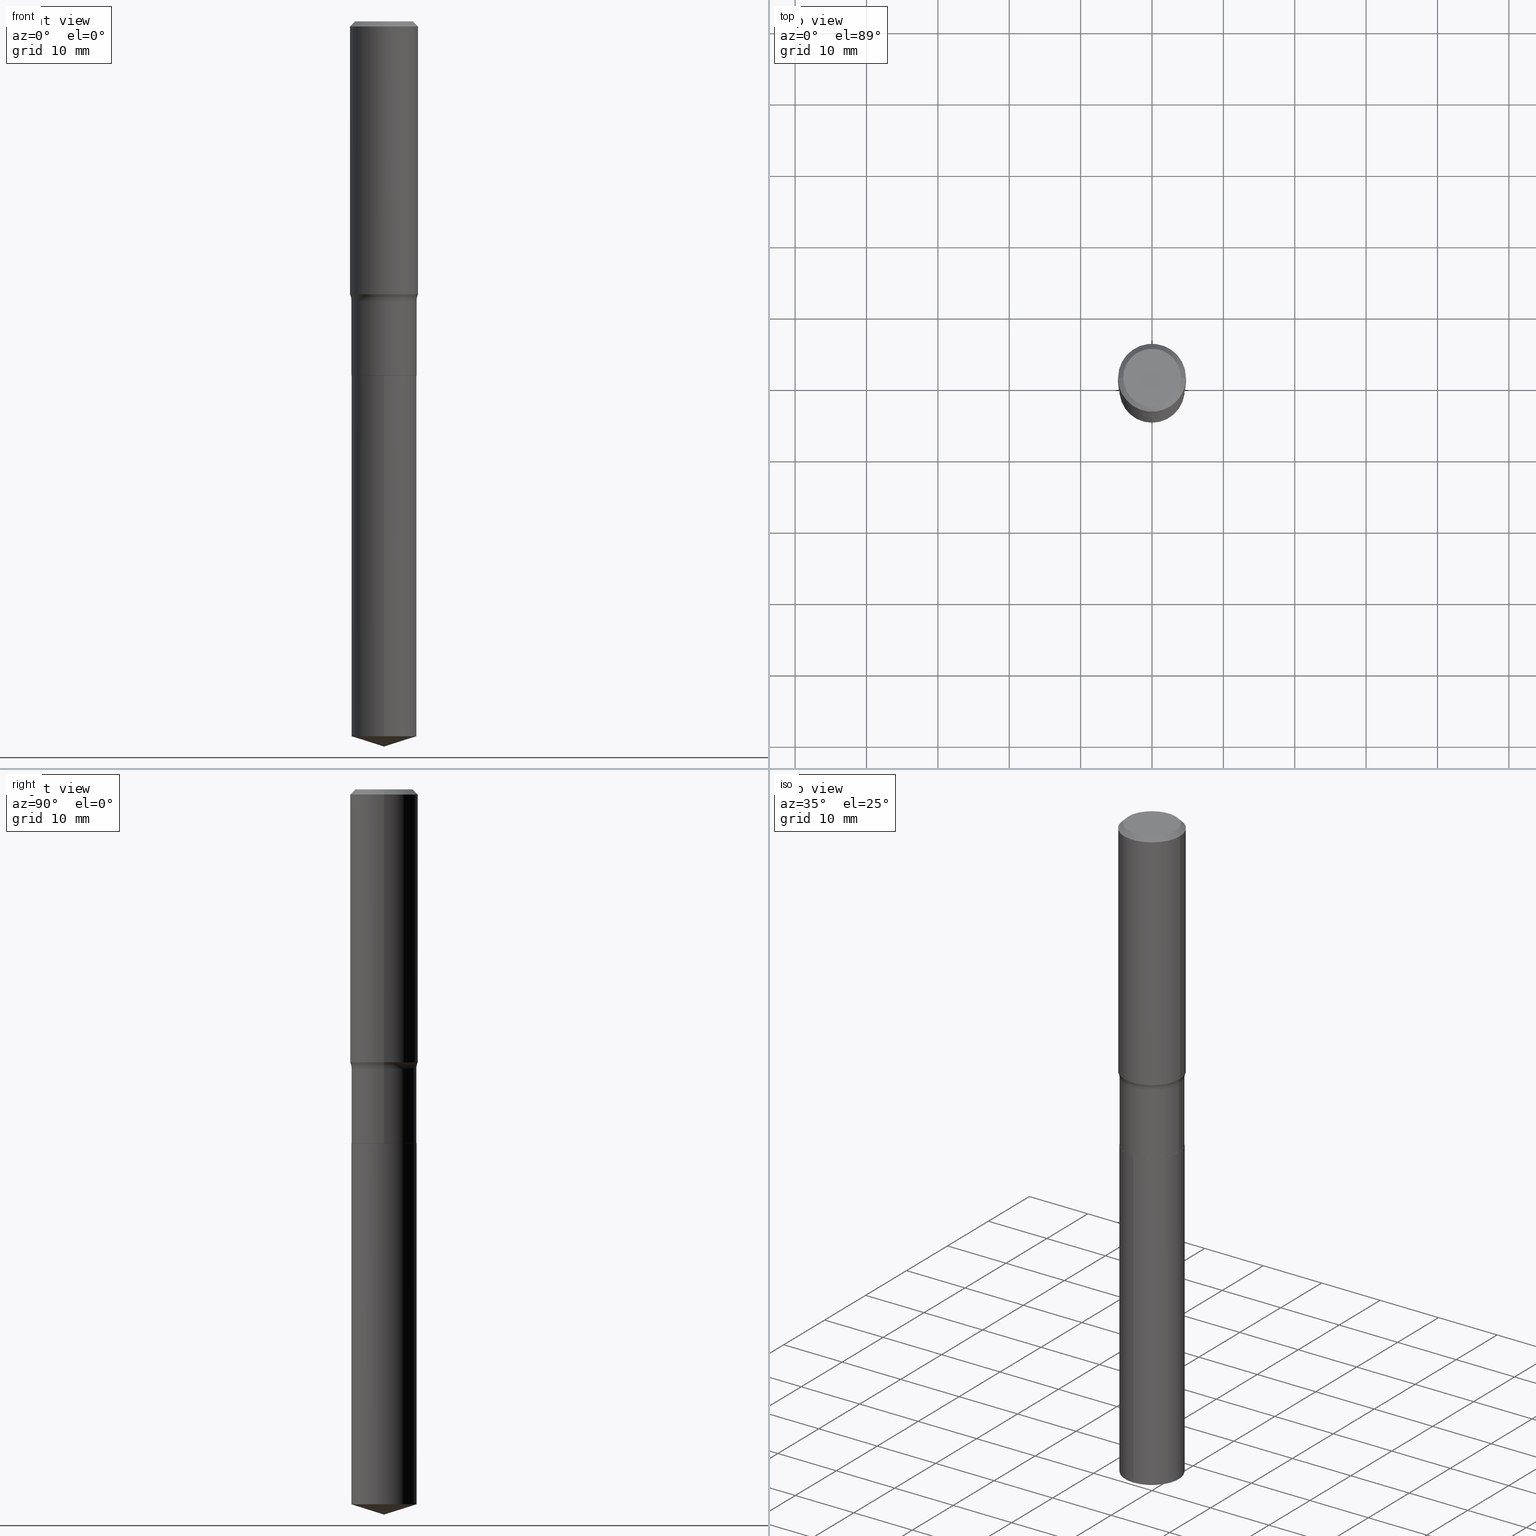
[diagram: canonical four-view strip — front | top / right | iso, engineering-drawing reading convention]
A machine part, canonical four-view strip (front | top / right | iso — engineering-drawing reading convention). The complete STEP part file that produces these views, byte-faithful:
ISO-10303-21;
HEADER;
FILE_DESCRIPTION (( 'STEP AP203' ),
    '1' );
FILE_NAME ('51523.STEP',
    '2024-04-19T12:57:30',
    ( '' ),
    ( '' ),
    'SwSTEP 2.0',
    'SolidWorks 2023',
    '' );
FILE_SCHEMA (( 'CONFIG_CONTROL_DESIGN' ));
ENDSEC;

DATA;
#1 = CIRCLE ( 'NONE', #19, 0.1796999999999999709 ) ;
#2 = APPROVAL_PERSON_ORGANIZATION ( #6, #184, #117 ) ;
#3 = PRODUCT_DEFINITION_SHAPE ( 'NONE', 'NONE',  #411 ) ;
#4 = MECHANICAL_CONTEXT ( 'NONE', #102, 'mechanical' ) ;
#5 = DIRECTION ( 'NONE',  ( -6.659769872151627355E-15, -0.9537169507482260444, 0.3007057995042759502 ) ) ;
#6 = PERSON_AND_ORGANIZATION ( #456, #54 ) ;
#7 = CARTESIAN_POINT ( 'NONE',  ( 1.276845296160996660E-15, 0.1796999999999931708, -1.953200000000000269 ) ) ;
#8 = AXIS2_PLACEMENT_3D ( 'NONE', #459, #116, #81 ) ;
#9 = ADVANCED_FACE ( 'NONE', ( #406 ), #220, .T. ) ;
#10 = FACE_OUTER_BOUND ( 'NONE', #80, .T. ) ;
#11 = CONICAL_SURFACE ( 'NONE', #453, 124.8659371009141097, 1.265363707695889461 ) ;
#12 = CARTESIAN_POINT ( 'NONE',  ( 3.765777414644491171E-29, -5.376532113684559684E-15, -1.539899999999999824 ) ) ;
#13 = CARTESIAN_POINT ( 'NONE',  ( 0.000000000000000000, 0.000000000000000000, 0.000000000000000000 ) ) ;
#14 = FACE_OUTER_BOUND ( 'NONE', #88, .T. ) ;
#15 = CARTESIAN_POINT ( 'NONE',  ( 0.1796999999999999709, -6.631370506864782203E-15, -1.539899999999999824 ) ) ;
#16 = DIRECTION ( 'NONE',  ( -6.982962677686265922E-15, -1.000000000000000000, 3.500519750498731253E-15 ) ) ;
#17 = CARTESIAN_POINT ( 'NONE',  ( -0.1875000000000001943, -3.925556172444020982E-15, -1.505900588240381976 ) ) ;
#18 = CARTESIAN_POINT ( 'NONE',  ( 3.765777414644491171E-29, -5.376532113684559684E-15, -1.539899999999999824 ) ) ;
#19 = AXIS2_PLACEMENT_3D ( 'NONE', #162, #433, #242 ) ;
#20 = FACE_OUTER_BOUND ( 'NONE', #488, .T. ) ;
#21 = DIRECTION ( 'NONE',  ( 1.000000000000000000, -6.982962677686267499E-15, 4.876227444496879000E-29 ) ) ;
#22 = PERSON_AND_ORGANIZATION ( #456, #54 ) ;
#23 = LINE ( 'NONE', #314, #110 ) ;
#24 = ADVANCED_FACE ( 'NONE', ( #101 ), #25, .F. ) ;
#25 = TOROIDAL_SURFACE ( 'NONE', #202, 0.2576999999999999846, 0.07800000000000002764 ) ;
#26 = EDGE_LOOP ( 'NONE', ( #75, #350, #28 ) ) ;
#27 = LOCAL_TIME ( 8, 57, 30.00000000000000000, #56 ) ;
#28 = ORIENTED_EDGE ( 'NONE', *, *, #113, .F. ) ;
#29 = EDGE_LOOP ( 'NONE', ( #252, #371, #405, #491 ) ) ;
#30 = ADVANCED_FACE ( 'NONE', ( #213 ), #426, .T. ) ;
#31 = ORIENTED_EDGE ( 'NONE', *, *, #436, .T. ) ;
#32 = ORIENTED_EDGE ( 'NONE', *, *, #407, .F. ) ;
#33 = CONICAL_SURFACE ( 'NONE', #478, 0.1791999999999999982, 0.7853981633975507526 ) ;
#34 = ORIENTED_EDGE ( 'NONE', *, *, #267, .T. ) ;
#35 = CARTESIAN_POINT ( 'NONE',  ( 0.000000000000000000, 0.000000000000000000, 0.000000000000000000 ) ) ;
#36 = EDGE_CURVE ( 'NONE', #445, #68, #138, .T. ) ;
#37 = AXIS2_PLACEMENT_3D ( 'NONE', #199, #308, #469 ) ;
#38 = CARTESIAN_POINT ( 'NONE',  ( 9.781892846329535974E-29, -1.396590012025419068E-14, -4.000000000000000000 ) ) ;
#39 = CARTESIAN_POINT ( 'NONE',  ( 9.782628284099094483E-29, -1.396484693150966468E-14, -4.000000000000000000 ) ) ;
#40 = CARTESIAN_POINT ( 'NONE',  ( 9.643691610776730559E-29, -1.376756428873391378E-14, -3.943340807638446854 ) ) ;
#41 = DIRECTION ( 'NONE',  ( 1.000000000000000000, -6.982962677686267499E-15, 0.000000000000000000 ) ) ;
#42 = DIRECTION ( 'NONE',  ( -2.445468806185136597E-29, 3.491481338843145583E-15, 1.000000000000000000 ) ) ;
#43 = AXIS2_PLACEMENT_3D ( 'NONE', #472, #130, #204 ) ;
#44 = CYLINDRICAL_SURFACE ( 'NONE', #397, 0.1796999999999999986 ) ;
#45 = CIRCLE ( 'NONE', #403, 0.07800000000000002764 ) ;
#46 = DIRECTION ( 'NONE',  ( 1.000000000000000000, -6.982962677686265922E-15, 4.876176775795935232E-29 ) ) ;
#47 = DIRECTION ( 'NONE',  ( -2.445657071024773621E-29, 3.491211732877416171E-15, 1.000000000000000000 ) ) ;
#48 = PLANE ( 'NONE',  #148 ) ;
#49 = DIRECTION ( 'NONE',  ( -0.7071067811865457964, 2.468850131082238917E-15, -0.7071067811865492381 ) ) ;
#50 = CARTESIAN_POINT ( 'NONE',  ( 1.276845296160996068E-15, 0.1796999999999861763, -3.943340807638447298 ) ) ;
#51 = FACE_OUTER_BOUND ( 'NONE', #450, .T. ) ;
#52 = CARTESIAN_POINT ( 'NONE',  ( -1.254838393180125292E-15, -0.1797000000000137376, -3.943340807638445966 ) ) ;
#53 = AXIS2_PLACEMENT_3D ( 'NONE', #144, #348, #72 ) ;
#54 = ORGANIZATION ( 'UNSPECIFIED', 'UNSPECIFIED', '' ) ;
#55 = DIRECTION ( 'NONE',  ( -0.7071067811866199593, 7.493145998870616062E-15, 0.7071067811864750752 ) ) ;
#56 = COORDINATED_UNIVERSAL_TIME_OFFSET ( 5, 0, .BEHIND. ) ;
#57 = EDGE_CURVE ( 'NONE', #377, #222, #191, .T. ) ;
#58 = COORDINATED_UNIVERSAL_TIME_OFFSET ( 5, 0, .BEHIND. ) ;
#59 = ORIENTED_EDGE ( 'NONE', *, *, #176, .F. ) ;
#60 = CC_DESIGN_PERSON_AND_ORGANIZATION_ASSIGNMENT ( #367, #363, ( #172 ) ) ;
#61 = CALENDAR_DATE ( 2024, 19, 4 ) ;
#62 = AXIS2_PLACEMENT_3D ( 'NONE', #127, #281, #21 ) ;
#63 = VERTEX_POINT ( 'NONE', #15 ) ;
#64 = CIRCLE ( 'NONE', #357, 0.1796999999999999986 ) ;
#65 = ORIENTED_EDGE ( 'NONE', *, *, #474, .F. ) ;
#66 = ADVANCED_FACE ( 'NONE', ( #353 ), #44, .T. ) ;
#67 = ORIENTED_EDGE ( 'NONE', *, *, #481, .F. ) ;
#68 = VERTEX_POINT ( 'NONE', #84 ) ;
#69 = AXIS2_PLACEMENT_3D ( 'NONE', #18, #96, #166 ) ;
#70 = LOCAL_TIME ( 8, 57, 30.00000000000000000, #131 ) ;
#71 = ADVANCED_BREP_SHAPE_REPRESENTATION ( '51523', ( #334, #160, #263 ), #288 ) ;
#72 = DIRECTION ( 'NONE',  ( 1.000000000000000000, -6.982962677686267499E-15, 4.876227444496879000E-29 ) ) ;
#73 = ORIENTED_EDGE ( 'NONE', *, *, #311, .F. ) ;
#74 = CIRCLE ( 'NONE', #53, 0.1593749999999999889 ) ;
#75 = ORIENTED_EDGE ( 'NONE', *, *, #181, .F. ) ;
#76 = PRODUCT ( '51523', '51523', '', ( #4 ) ) ;
#77 = ADVANCED_FACE ( 'NONE', ( #10 ), #48, .F. ) ;
#78 = LINE ( 'NONE', #423, #444 ) ;
#79 = PLANE ( 'NONE',  #163 ) ;
#80 = EDGE_LOOP ( 'NONE', ( #129, #327 ) ) ;
#81 = DIRECTION ( 'NONE',  ( -1.000000000000000000, 6.982962677686265922E-15, 0.000000000000000000 ) ) ;
#82 = APPROVAL ( #175, 'UNSPECIFIED' ) ;
#83 = CARTESIAN_POINT ( 'NONE',  ( 0.1791999999999999982, -8.070908262869809266E-15, -1.953199999999999825 ) ) ;
#84 = CARTESIAN_POINT ( 'NONE',  ( 0.1875000000000000278, -1.407503414721139120E-15, -0.02812500000000015682 ) ) ;
#85 = CARTESIAN_POINT ( 'NONE',  ( 0.000000000000000000, 0.000000000000000000, 0.000000000000000000 ) ) ;
#86 = CARTESIAN_POINT ( 'NONE',  ( -0.1796999999999999709, -4.820328565860884929E-15, -1.539899999999999824 ) ) ;
#87 = VECTOR ( 'NONE', #118, 39.37007874015748143 ) ;
#88 = EDGE_LOOP ( 'NONE', ( #239, #364, #325, #482 ) ) ;
#89 = CARTESIAN_POINT ( 'NONE',  ( 4.776489672240808724E-29, -6.819561351028431331E-15, -1.953199999999999825 ) ) ;
#90 = LOCAL_TIME ( 8, 57, 30.00000000000000000, #58 ) ;
#91 = CARTESIAN_POINT ( 'NONE',  ( 0.1875000000000001110, -1.309305502066175797E-15, 9.142831454617385217E-30 ) ) ;
#92 = EDGE_CURVE ( 'NONE', #335, #177, #413, .T. ) ;
#93 = DIRECTION ( 'NONE',  ( 1.000000000000000000, -6.982962677686266711E-15, 4.876176775795935793E-29 ) ) ;
#94 = CARTESIAN_POINT ( 'NONE',  ( -0.1796999999999999986, -4.820328565860884929E-15, -1.952699999999999880 ) ) ;
#95 = CARTESIAN_POINT ( 'NONE',  ( -0.1593749999999999889, 1.162008633083729827E-15, 3.252968060227205293E-18 ) ) ;
#96 = DIRECTION ( 'NONE',  ( -2.445468806185136597E-29, 3.491481338843145583E-15, 1.000000000000000000 ) ) ;
#97 = CC_DESIGN_APPROVAL ( #184, ( #411 ) ) ;
#98 = PERSON_AND_ORGANIZATION ( #456, #54 ) ;
#99 = EDGE_CURVE ( 'NONE', #68, #445, #310, .T. ) ;
#100 = APPROVAL_STATUS ( 'not_yet_approved' ) ;
#101 = FACE_OUTER_BOUND ( 'NONE', #336, .T. ) ;
#102 = APPLICATION_CONTEXT ( 'configuration controlled 3d designs of mechanical parts and assemblies' ) ;
#103 = VECTOR ( 'NONE', #293, 39.37007874015748143 ) ;
#104 = CC_DESIGN_APPROVAL ( #467, ( #470 ) ) ;
#105 = EDGE_CURVE ( 'NONE', #454, #63, #153, .T. ) ;
#106 = ORIENTED_EDGE ( 'NONE', *, *, #181, .T. ) ;
#107 = ORIENTED_EDGE ( 'NONE', *, *, #136, .F. ) ;
#108 = ORIENTED_EDGE ( 'NONE', *, *, #113, .T. ) ;
#109 = CARTESIAN_POINT ( 'NONE',  ( 0.1791999999999999982, -8.070908262869809266E-15, -1.953199999999999825 ) ) ;
#110 = VECTOR ( 'NONE', #55, 39.37007874015748143 ) ;
#111 = EDGE_CURVE ( 'NONE', #377, #454, #240, .T. ) ;
#112 = EDGE_LOOP ( 'NONE', ( #178, #486 ) ) ;
#113 = EDGE_CURVE ( 'NONE', #289, #139, #244, .T. ) ;
#114 = CIRCLE ( 'NONE', #355, 0.1791999999999999982 ) ;
#115 = PLANE ( 'NONE',  #274 ) ;
#116 = DIRECTION ( 'NONE',  ( 2.445468806185136597E-29, -3.491481338843145583E-15, -1.000000000000000000 ) ) ;
#117 = APPROVAL_ROLE ( '' ) ;
#118 = DIRECTION ( 'NONE',  ( 0.7071067811865457964, -7.319954787623249734E-15, -0.7071067811865492381 ) ) ;
#119 = CARTESIAN_POINT ( 'NONE',  ( 6.877881017395734864E-31, -9.819791265496401309E-17, -0.02812500000000015682 ) ) ;
#120 = DIRECTION ( 'NONE',  ( 1.000000000000000000, -6.982962677686269077E-15, 0.000000000000000000 ) ) ;
#121 = CARTESIAN_POINT ( 'NONE',  ( 3.765777414644491171E-29, -5.376532113684559684E-15, -1.539899999999999824 ) ) ;
#122 =( CONVERSION_BASED_UNIT ( 'INCH', #379 ) LENGTH_UNIT ( ) NAMED_UNIT ( #261 ) );
#123 = CARTESIAN_POINT ( 'NONE',  ( 6.877881017395734864E-31, -9.819791265496401309E-17, -0.02812500000000015682 ) ) ;
#124 = FACE_OUTER_BOUND ( 'NONE', #228, .T. ) ;
#125 = VECTOR ( 'NONE', #238, 39.37007874015748143 ) ;
#126 = DIRECTION ( 'NONE',  ( -6.982962677686265922E-15, -1.000000000000000000, 3.040454083098790380E-15 ) ) ;
#127 = CARTESIAN_POINT ( 'NONE',  ( -7.955031918821655674E-47, 1.135767727816384611E-32, 3.252968060235159768E-18 ) ) ;
#128 = COORDINATED_UNIVERSAL_TIME_OFFSET ( 5, 0, .BEHIND. ) ;
#129 = ORIENTED_EDGE ( 'NONE', *, *, #360, .T. ) ;
#130 = DIRECTION ( 'NONE',  ( -2.445468806185136597E-29, 3.491481338843145583E-15, 1.000000000000000000 ) ) ;
#131 = COORDINATED_UNIVERSAL_TIME_OFFSET ( 5, 0, .BEHIND. ) ;
#132 = DIRECTION ( 'NONE',  ( 1.000000000000000000, -6.982962677686264344E-15, 0.000000000000000000 ) ) ;
#133 = AXIS2_PLACEMENT_3D ( 'NONE', #305, #151, #422 ) ;
#134 = CALENDAR_DATE ( 2024, 19, 4 ) ;
#135 = EDGE_LOOP ( 'NONE', ( #214, #34, #182, #402 ) ) ;
#136 = EDGE_CURVE ( 'NONE', #224, #449, #74, .T. ) ;
#137 = ORIENTED_EDGE ( 'NONE', *, *, #92, .F. ) ;
#138 = CIRCLE ( 'NONE', #250, 0.1875000000000000278 ) ;
#139 = VERTEX_POINT ( 'NONE', #50 ) ;
#140 = AXIS2_PLACEMENT_3D ( 'NONE', #301, #421, #192 ) ;
#141 = EDGE_LOOP ( 'NONE', ( #418, #73, #412, #253 ) ) ;
#142 = ORIENTED_EDGE ( 'NONE', *, *, #442, .T. ) ;
#143 = ORIENTED_EDGE ( 'NONE', *, *, #474, .T. ) ;
#144 = CARTESIAN_POINT ( 'NONE',  ( -7.955031918821655674E-47, 1.135767727816384611E-32, 3.252968060235159768E-18 ) ) ;
#145 = CIRCLE ( 'NONE', #193, 0.07800000000000002764 ) ;
#146 = DIRECTION ( 'NONE',  ( -2.445657071024773621E-29, 3.491211732877416171E-15, 1.000000000000000000 ) ) ;
#147 = APPROVAL_STATUS ( 'not_yet_approved' ) ;
#148 = AXIS2_PLACEMENT_3D ( 'NONE', #419, #236, #393 ) ;
#149 = LINE ( 'NONE', #91, #125 ) ;
#150 = CC_DESIGN_APPROVAL ( #82, ( #172 ) ) ;
#151 = DIRECTION ( 'NONE',  ( -2.445657071024773621E-29, 3.491211732877416171E-15, 1.000000000000000000 ) ) ;
#152 = DIRECTION ( 'NONE',  ( 1.000000000000000000, -6.982962677686265922E-15, 0.000000000000000000 ) ) ;
#153 = LINE ( 'NONE', #232, #103 ) ;
#154 = DIRECTION ( 'NONE',  ( -2.445657071024773621E-29, 3.491211732877416171E-15, 1.000000000000000000 ) ) ;
#155 = DIRECTION ( 'NONE',  ( -2.445657071024773621E-29, 3.491211732877416171E-15, 1.000000000000000000 ) ) ;
#156 = ORIENTED_EDGE ( 'NONE', *, *, #448, .T. ) ;
#157 = DIRECTION ( 'NONE',  ( 1.000000000000000000, -6.982962677686264344E-15, 0.000000000000000000 ) ) ;
#158 = CARTESIAN_POINT ( 'NONE',  ( 0.000000000000000000, 0.000000000000000000, 0.000000000000000000 ) ) ;
#159 = LINE ( 'NONE', #356, #87 ) ;
#160 = MANIFOLD_SOLID_BREP ( 'Body-Move/Copy2[2]', #372 ) ;
#161 = AXIS2_PLACEMENT_3D ( 'NONE', #266, #382, #41 ) ;
#162 = CARTESIAN_POINT ( 'NONE',  ( 3.765777414644491171E-29, -5.376532113684559684E-15, -1.539899999999999824 ) ) ;
#163 = AXIS2_PLACEMENT_3D ( 'NONE', #349, #471, #384 ) ;
#164 = DIRECTION ( 'NONE',  ( -2.445657071024773621E-29, 3.491211732877416171E-15, 1.000000000000000000 ) ) ;
#165 = ADVANCED_FACE ( 'NONE', ( #124 ), #430, .T. ) ;
#166 = DIRECTION ( 'NONE',  ( 1.000000000000000000, -6.982962677686265922E-15, 4.883557194083112901E-29 ) ) ;
#167 = CARTESIAN_POINT ( 'NONE',  ( -8.650345089245393328E-28, 1.234839072960635918E-13, 35.37007874015748143 ) ) ;
#168 = CC_DESIGN_PERSON_AND_ORGANIZATION_ASSIGNMENT ( #457, #188, ( #76 ) ) ;
#169 = DESIGN_CONTEXT ( 'detailed design', #312, 'design' ) ;
#170 = DIRECTION ( 'NONE',  ( -2.445468806185136597E-29, 3.491481338843145583E-15, 1.000000000000000000 ) ) ;
#171 = CIRCLE ( 'NONE', #452, 0.1796999999999999986 ) ;
#172 = PRODUCT_DEFINITION_FORMATION_WITH_SPECIFIED_SOURCE ( 'ANY', '', #76, .NOT_KNOWN. ) ;
#173 = APPROVAL_ROLE ( '' ) ;
#174 = DIRECTION ( 'NONE',  ( 1.000000000000000000, -6.982962677686265922E-15, 4.876176775795935232E-29 ) ) ;
#175 = APPROVAL_STATUS ( 'not_yet_approved' ) ;
#176 = EDGE_CURVE ( 'NONE', #446, #368, #257, .T. ) ;
#177 = VERTEX_POINT ( 'NONE', #378 ) ;
#178 = ORIENTED_EDGE ( 'NONE', *, *, #57, .F. ) ;
#179 = VECTOR ( 'NONE', #227, 39.37007874015748143 ) ;
#180 = ORIENTED_EDGE ( 'NONE', *, *, #211, .T. ) ;
#181 = EDGE_CURVE ( 'NONE', #492, #289, #190, .T. ) ;
#182 = ORIENTED_EDGE ( 'NONE', *, *, #99, .F. ) ;
#183 = DIRECTION ( 'NONE',  ( -2.445468806185136597E-29, 3.491481338843145583E-15, 1.000000000000000000 ) ) ;
#184 = APPROVAL ( #147, 'UNSPECIFIED' ) ;
#185 = AXIS2_PLACEMENT_3D ( 'NONE', #167, #154, #16 ) ;
#186 = ADVANCED_FACE ( 'NONE', ( #298 ), #225, .T. ) ;
#187 = CARTESIAN_POINT ( 'NONE',  ( 6.877881017395734864E-31, -9.819791265496401309E-17, -0.02812500000000015682 ) ) ;
#188 = PERSON_AND_ORGANIZATION_ROLE ( 'design_owner' ) ;
#189 = CARTESIAN_POINT ( 'NONE',  ( -0.1875000000000000278, 1.211107589411211094E-15, -0.02812500000000015682 ) ) ;
#190 = LINE ( 'NONE', #38, #210 ) ;
#191 = CIRCLE ( 'NONE', #262, 0.1791999999999999982 ) ;
#192 = DIRECTION ( 'NONE',  ( 1.000000000000000000, -6.982962677686264344E-15, 0.000000000000000000 ) ) ;
#193 = AXIS2_PLACEMENT_3D ( 'NONE', #432, #381, #233 ) ;
#194 = DIRECTION ( 'NONE',  ( 0.7071067811866199593, -2.468850131083015945E-15, 0.7071067811864750752 ) ) ;
#195 = LINE ( 'NONE', #275, #373 ) ;
#196 = ORIENTED_EDGE ( 'NONE', *, *, #230, .F. ) ;
#197 = CARTESIAN_POINT ( 'NONE',  ( 9.643691610776730559E-29, -1.376756428873391378E-14, -3.943340807638446854 ) ) ;
#198 = CARTESIAN_POINT ( 'NONE',  ( -8.650345089245393328E-28, 1.234839072960635918E-13, 35.37007874015748143 ) ) ;
#199 = CARTESIAN_POINT ( 'NONE',  ( 3.682632913757702616E-29, -5.257823801994209619E-15, -1.505900588240381976 ) ) ;
#200 = DATE_AND_TIME ( #61, #27 ) ;
#201 = LINE ( 'NONE', #189, #428 ) ;
#202 = AXIS2_PLACEMENT_3D ( 'NONE', #121, #272, #451 ) ;
#203 = UNCERTAINTY_MEASURE_WITH_UNIT (LENGTH_MEASURE( 1.000000000000000082E-05 ), #122, 'distance_accuracy_value', 'NONE');
#204 = DIRECTION ( 'NONE',  ( 1.000000000000000000, -6.982962677686266711E-15, 4.876176775795935793E-29 ) ) ;
#205 = DATE_AND_TIME ( #134, #415 ) ;
#206 = CARTESIAN_POINT ( 'NONE',  ( 0.2576999999999999846, -7.176041595724309460E-15, -1.539899999999999824 ) ) ;
#207 = FACE_OUTER_BOUND ( 'NONE', #135, .T. ) ;
#208 = PERSON_AND_ORGANIZATION ( #456, #54 ) ;
#209 = APPROVAL_DATE_TIME ( #200, #82 ) ;
#210 = VECTOR ( 'NONE', #5, 39.37007874015748143 ) ;
#211 = EDGE_CURVE ( 'NONE', #454, #446, #329, .T. ) ;
#212 = APPROVAL_PERSON_ORGANIZATION ( #285, #82, #284 ) ;
#213 = FACE_OUTER_BOUND ( 'NONE', #286, .T. ) ;
#214 = ORIENTED_EDGE ( 'NONE', *, *, #311, .T. ) ;
#215 = ORIENTED_EDGE ( 'NONE', *, *, #297, .T. ) ;
#216 = ORIENTED_EDGE ( 'NONE', *, *, #424, .F. ) ;
#217 = ADVANCED_FACE ( 'NONE', ( #344 ), #408, .F. ) ;
#218 = AXIS2_PLACEMENT_3D ( 'NONE', #197, #277, #351 ) ;
#219 = AXIS2_PLACEMENT_3D ( 'NONE', #12, #464, #120 ) ;
#220 = CYLINDRICAL_SURFACE ( 'NONE', #299, 0.1796999999999999986 ) ;
#221 = CC_DESIGN_DATE_AND_TIME_ASSIGNMENT ( #205, #480, ( #411 ) ) ;
#222 = VERTEX_POINT ( 'NONE', #477 ) ;
#223 = DIRECTION ( 'NONE',  ( -2.445468806185136597E-29, 3.491481338843145583E-15, 1.000000000000000000 ) ) ;
#224 = VERTEX_POINT ( 'NONE', #95 ) ;
#225 = CONICAL_SURFACE ( 'NONE', #8, 0.1875000000000000278, 0.7853981633974458365 ) ;
#226 = AXIS2_PLACEMENT_3D ( 'NONE', #391, #278, #387 ) ;
#227 = DIRECTION ( 'NONE',  ( 6.776566513254253404E-15, 0.9537169507482281539, 0.3007057995042693443 ) ) ;
#228 = EDGE_LOOP ( 'NONE', ( #374, #290, #156, #400 ) ) ;
#229 = DIRECTION ( 'NONE',  ( -2.445468806185136877E-29, 3.491481338843145188E-15, 1.000000000000000000 ) ) ;
#230 = EDGE_CURVE ( 'NONE', #63, #368, #1, .T. ) ;
#231 = DIRECTION ( 'NONE',  ( -2.445657071024773621E-29, 3.491211732877416171E-15, 1.000000000000000000 ) ) ;
#232 = CARTESIAN_POINT ( 'NONE',  ( 0.1796999999999999986, -1.254838393180221928E-15, 8.762489666105295644E-30 ) ) ;
#233 = DIRECTION ( 'NONE',  ( -1.000000000000000000, 7.105427357601001859E-15, 0.000000000000000000 ) ) ;
#234 = CONICAL_SURFACE ( 'NONE', #185, 124.8659371009141097, 1.265363707695889461 ) ;
#235 = CC_DESIGN_DATE_AND_TIME_ASSIGNMENT ( #319, #476, ( #470 ) ) ;
#236 = DIRECTION ( 'NONE',  ( 2.445657071024773340E-29, -3.491211732877416171E-15, -1.000000000000000000 ) ) ;
#237 =( NAMED_UNIT ( * ) PLANE_ANGLE_UNIT ( ) SI_UNIT ( $, .RADIAN. ) );
#238 = DIRECTION ( 'NONE',  ( -2.445468806185136877E-29, 3.491481338843145188E-15, 1.000000000000000000 ) ) ;
#239 = ORIENTED_EDGE ( 'NONE', *, *, #297, .F. ) ;
#240 = LINE ( 'NONE', #109, #437 ) ;
#241 = CARTESIAN_POINT ( 'NONE',  ( 0.1593749999999999889, -1.238966577815981903E-15, 3.252968060243383104E-18 ) ) ;
#242 = DIRECTION ( 'NONE',  ( 1.000000000000000000, -6.982962677686269077E-15, 0.000000000000000000 ) ) ;
#243 = EDGE_CURVE ( 'NONE', #222, #377, #114, .T. ) ;
#244 = CIRCLE ( 'NONE', #218, 0.1796999999999999986 ) ;
#245 = CONICAL_SURFACE ( 'NONE', #479, 0.1875000000000000278, 0.7853981633974458365 ) ;
#246 = FACE_OUTER_BOUND ( 'NONE', #29, .T. ) ;
#247 = CALENDAR_DATE ( 2024, 19, 4 ) ;
#248 = DATE_AND_TIME ( #249, #90 ) ;
#249 = CALENDAR_DATE ( 2024, 19, 4 ) ;
#250 = AXIS2_PLACEMENT_3D ( 'NONE', #187, #302, #385 ) ;
#251 = CIRCLE ( 'NONE', #219, 0.1796999999999999709 ) ;
#252 = ORIENTED_EDGE ( 'NONE', *, *, #57, .T. ) ;
#253 = ORIENTED_EDGE ( 'NONE', *, *, #230, .T. ) ;
#254 = ORIENTED_EDGE ( 'NONE', *, *, #328, .F. ) ;
#255 = VECTOR ( 'NONE', #475, 39.37007874015748143 ) ;
#256 = CONICAL_SURFACE ( 'NONE', #140, 0.1791999999999999982, 0.7853981633975507526 ) ;
#257 = LINE ( 'NONE', #410, #345 ) ;
#258 = EDGE_LOOP ( 'NONE', ( #254, #107, #307, #404 ) ) ;
#259 = ADVANCED_FACE ( 'NONE', ( #246 ), #33, .T. ) ;
#260 = EDGE_LOOP ( 'NONE', ( #59, #287, #332, #32 ) ) ;
#261 = DIMENSIONAL_EXPONENTS ( 1.000000000000000000, 0.000000000000000000, 0.000000000000000000, 0.000000000000000000, 0.000000000000000000, 0.000000000000000000, 0.000000000000000000 ) ;
#262 = AXIS2_PLACEMENT_3D ( 'NONE', #89, #270, #157 ) ;
#263 = AXIS2_PLACEMENT_3D ( 'NONE', #158, #303, #309 ) ;
#264 = DIRECTION ( 'NONE',  ( -2.445657071024773621E-29, 3.491211732877416171E-15, 1.000000000000000000 ) ) ;
#265 = DIRECTION ( 'NONE',  ( -1.000000000000000000, 6.982962677686265922E-15, -4.876176775795935793E-29 ) ) ;
#266 = CARTESIAN_POINT ( 'NONE',  ( 4.775266937837715922E-29, -6.817815610359009828E-15, -1.952699999999999880 ) ) ;
#267 = EDGE_CURVE ( 'NONE', #335, #445, #317, .T. ) ;
#268 = APPLICATION_PROTOCOL_DEFINITION ( 'international standard', 'config_control_design', 1994, #102 ) ;
#269 = CARTESIAN_POINT ( 'NONE',  ( -3.977515959410827837E-47, 5.678838639081923055E-33, 1.626484030117579884E-18 ) ) ;
#270 = DIRECTION ( 'NONE',  ( -2.445468806185136597E-29, 3.491481338843145583E-15, 1.000000000000000000 ) ) ;
#271 = DIRECTION ( 'NONE',  ( 2.445468806185136597E-29, -3.491481338843145583E-15, -1.000000000000000000 ) ) ;
#272 = DIRECTION ( 'NONE',  ( -2.445468806185136597E-29, 3.491481338843145583E-15, 1.000000000000000000 ) ) ;
#273 = FACE_OUTER_BOUND ( 'NONE', #260, .T. ) ;
#274 = AXIS2_PLACEMENT_3D ( 'NONE', #269, #458, #265 ) ;
#275 = CARTESIAN_POINT ( 'NONE',  ( -1.254838393180174201E-15, -0.1797000000000068265, -1.953199999999999159 ) ) ;
#276 = AXIS2_PLACEMENT_3D ( 'NONE', #85, #463, #46 ) ;
#277 = DIRECTION ( 'NONE',  ( -2.445657071024773621E-29, 3.491211732877416171E-15, 1.000000000000000000 ) ) ;
#278 = DIRECTION ( 'NONE',  ( -2.445468806185136597E-29, 3.491481338843145583E-15, 1.000000000000000000 ) ) ;
#279 = DIRECTION ( 'NONE',  ( -6.982962677686265922E-15, -1.000000000000000000, 3.040454083098790380E-15 ) ) ;
#280 = EDGE_CURVE ( 'NONE', #222, #446, #23, .T. ) ;
#281 = DIRECTION ( 'NONE',  ( -2.445468806185136597E-29, 3.491481338843145583E-15, 1.000000000000000000 ) ) ;
#282 = PERSON_AND_ORGANIZATION ( #456, #54 ) ;
#283 = CIRCLE ( 'NONE', #226, 0.1796999999999999986 ) ;
#284 = APPROVAL_ROLE ( '' ) ;
#285 = PERSON_AND_ORGANIZATION ( #456, #54 ) ;
#286 = EDGE_LOOP ( 'NONE', ( #65, #31, #142, #484 ) ) ;
#287 = ORIENTED_EDGE ( 'NONE', *, *, #481, .T. ) ;
#288 =( GEOMETRIC_REPRESENTATION_CONTEXT ( 3 ) GLOBAL_UNCERTAINTY_ASSIGNED_CONTEXT ( ( #203 ) ) GLOBAL_UNIT_ASSIGNED_CONTEXT ( ( #122, #237, #346 ) ) REPRESENTATION_CONTEXT ( 'NONE', 'WORKASPACE' ) );
#289 = VERTEX_POINT ( 'NONE', #52 ) ;
#290 = ORIENTED_EDGE ( 'NONE', *, *, #92, .T. ) ;
#291 = ORIENTED_EDGE ( 'NONE', *, *, #280, .F. ) ;
#292 = ORIENTED_EDGE ( 'NONE', *, *, #436, .F. ) ;
#293 = DIRECTION ( 'NONE',  ( -2.445468806185136877E-29, 3.491481338843145188E-15, 1.000000000000000000 ) ) ;
#294 = AXIS2_PLACEMENT_3D ( 'NONE', #119, #339, #466 ) ;
#295 = APPROVAL_PERSON_ORGANIZATION ( #98, #467, #173 ) ;
#296 = ADVANCED_FACE ( 'NONE', ( #207 ), #361, .T. ) ;
#297 = EDGE_CURVE ( 'NONE', #449, #224, #320, .T. ) ;
#298 = FACE_OUTER_BOUND ( 'NONE', #258, .T. ) ;
#299 = AXIS2_PLACEMENT_3D ( 'NONE', #35, #183, #174 ) ;
#300 = LOCAL_TIME ( 8, 57, 30.00000000000000000, #420 ) ;
#301 = CARTESIAN_POINT ( 'NONE',  ( 4.776489672240808724E-29, -6.819561351028431331E-15, -1.953199999999999825 ) ) ;
#302 = DIRECTION ( 'NONE',  ( -2.445468806185136597E-29, 3.491481338843145583E-15, 1.000000000000000000 ) ) ;
#303 = DIRECTION ( 'NONE',  ( 0.000000000000000000, 0.000000000000000000, 1.000000000000000000 ) ) ;
#304 = DIRECTION ( 'NONE',  ( -2.445657071024773621E-29, 3.491211732877416171E-15, 1.000000000000000000 ) ) ;
#305 = CARTESIAN_POINT ( 'NONE',  ( 4.776489672240808724E-29, -6.819561351028431331E-15, -1.953199999999999825 ) ) ;
#306 = CARTESIAN_POINT ( 'NONE',  ( -0.1875000000000000278, -1.345743227774397834E-15, -0.02812500000000015682 ) ) ;
#307 = ORIENTED_EDGE ( 'NONE', *, *, #380, .T. ) ;
#308 = DIRECTION ( 'NONE',  ( -2.445468806185136597E-29, 3.491481338843145583E-15, 1.000000000000000000 ) ) ;
#309 = DIRECTION ( 'NONE',  ( 1.000000000000000000, 0.000000000000000000, 0.000000000000000000 ) ) ;
#310 = CIRCLE ( 'NONE', #294, 0.1875000000000000278 ) ;
#311 = EDGE_CURVE ( 'NONE', #177, #335, #386, .T. ) ;
#312 = APPLICATION_CONTEXT ( 'configuration controlled 3d designs of mechanical parts and assemblies' ) ;
#313 = CARTESIAN_POINT ( 'NONE',  ( -1.254838393180174201E-15, -0.1797000000000068265, -1.953199999999999159 ) ) ;
#314 = CARTESIAN_POINT ( 'NONE',  ( -0.1791999999999999982, -5.546268768546331614E-15, -1.953199999999999825 ) ) ;
#315 = DIRECTION ( 'NONE',  ( -2.445468806185136597E-29, 3.491481338843145583E-15, 1.000000000000000000 ) ) ;
#316 = PERSON_AND_ORGANIZATION_ROLE ( 'creator' ) ;
#317 = LINE ( 'NONE', #358, #255 ) ;
#318 = EDGE_CURVE ( 'NONE', #439, #331, #171, .T. ) ;
#319 = DATE_AND_TIME ( #247, #70 ) ;
#320 = CIRCLE ( 'NONE', #62, 0.1593749999999999889 ) ;
#321 = AXIS2_PLACEMENT_3D ( 'NONE', #394, #304, #126 ) ;
#322 = CC_DESIGN_PERSON_AND_ORGANIZATION_ASSIGNMENT ( #22, #323, ( #411 ) ) ;
#323 = PERSON_AND_ORGANIZATION_ROLE ( 'creator' ) ;
#324 = PERSON_AND_ORGANIZATION_ROLE ( 'classification_officer' ) ;
#325 = ORIENTED_EDGE ( 'NONE', *, *, #99, .T. ) ;
#326 = ORIENTED_EDGE ( 'NONE', *, *, #455, .F. ) ;
#327 = ORIENTED_EDGE ( 'NONE', *, *, #318, .T. ) ;
#328 = EDGE_CURVE ( 'NONE', #449, #68, #159, .T. ) ;
#329 = CIRCLE ( 'NONE', #161, 0.1796999999999999986 ) ;
#330 = ORIENTED_EDGE ( 'NONE', *, *, #407, .T. ) ;
#331 = VERTEX_POINT ( 'NONE', #313 ) ;
#332 = ORIENTED_EDGE ( 'NONE', *, *, #105, .T. ) ;
#333 = ADVANCED_FACE ( 'NONE', ( #20 ), #115, .F. ) ;
#334 = MANIFOLD_SOLID_BREP ( 'Body-Move/Copy2[1]', #427 ) ;
#335 = VERTEX_POINT ( 'NONE', #17 ) ;
#336 = EDGE_LOOP ( 'NONE', ( #137, #443, #330, #326 ) ) ;
#337 = ADVANCED_FACE ( 'NONE', ( #51 ), #256, .T. ) ;
#338 = EDGE_LOOP ( 'NONE', ( #180, #370, #196, #409 ) ) ;
#339 = DIRECTION ( 'NONE',  ( -2.445468806185136597E-29, 3.491481338843145583E-15, 1.000000000000000000 ) ) ;
#340 = APPLICATION_PROTOCOL_DEFINITION ( 'international standard', 'config_control_design', 1994, #312 ) ;
#341 = DIRECTION ( 'NONE',  ( -6.982962677686265922E-15, -1.000000000000000000, 3.040454083098790380E-15 ) ) ;
#342 = CC_DESIGN_PERSON_AND_ORGANIZATION_ASSIGNMENT ( #208, #324, ( #470 ) ) ;
#343 = EDGE_LOOP ( 'NONE', ( #108, #143, #490, #414 ) ) ;
#344 = FACE_OUTER_BOUND ( 'NONE', #141, .T. ) ;
#345 = VECTOR ( 'NONE', #229, 39.37007874015748143 ) ;
#346 =( NAMED_UNIT ( * ) SI_UNIT ( $, .STERADIAN. ) SOLID_ANGLE_UNIT ( ) );
#347 = DIRECTION ( 'NONE',  ( -6.982962677686265922E-15, -1.000000000000000000, 3.500519750498731253E-15 ) ) ;
#348 = DIRECTION ( 'NONE',  ( -2.445468806185136597E-29, 3.491481338843145583E-15, 1.000000000000000000 ) ) ;
#349 = CARTESIAN_POINT ( 'NONE',  ( 4.776489672240808724E-29, -6.819561351028431331E-15, -1.953199999999999825 ) ) ;
#350 = ORIENTED_EDGE ( 'NONE', *, *, #424, .T. ) ;
#351 = DIRECTION ( 'NONE',  ( -6.982962677686265922E-15, -1.000000000000000000, 3.040454083098790380E-15 ) ) ;
#352 = LINE ( 'NONE', #388, #179 ) ;
#353 = FACE_OUTER_BOUND ( 'NONE', #343, .T. ) ;
#354 = AXIS2_PLACEMENT_3D ( 'NONE', #13, #223, #93 ) ;
#355 = AXIS2_PLACEMENT_3D ( 'NONE', #435, #170, #132 ) ;
#356 = CARTESIAN_POINT ( 'NONE',  ( 0.1875000000000000278, -1.384541287237126280E-15, -0.02812500000000015682 ) ) ;
#357 = AXIS2_PLACEMENT_3D ( 'NONE', #40, #47, #279 ) ;
#358 = CARTESIAN_POINT ( 'NONE',  ( -0.1875000000000001110, 1.332267629550188637E-15, -9.223003294227953596E-30 ) ) ;
#359 = DIRECTION ( 'NONE',  ( 1.000000000000000000, -6.982962677686268288E-15, 0.000000000000000000 ) ) ;
#360 = EDGE_CURVE ( 'NONE', #331, #439, #366, .T. ) ;
#361 = CYLINDRICAL_SURFACE ( 'NONE', #43, 0.1875000000000001110 ) ;
#362 = FACE_OUTER_BOUND ( 'NONE', #26, .T. ) ;
#363 = PERSON_AND_ORGANIZATION_ROLE ( 'design_supplier' ) ;
#364 = ORIENTED_EDGE ( 'NONE', *, *, #328, .T. ) ;
#365 = AXIS2_PLACEMENT_3D ( 'NONE', #417, #42, #152 ) ;
#366 = CIRCLE ( 'NONE', #321, 0.1796999999999999986 ) ;
#367 = PERSON_AND_ORGANIZATION ( #456, #54 ) ;
#368 = VERTEX_POINT ( 'NONE', #86 ) ;
#369 = DIRECTION ( 'NONE',  ( -6.982962677686266711E-15, -1.000000000000000000, 3.491481338843145583E-15 ) ) ;
#370 = ORIENTED_EDGE ( 'NONE', *, *, #176, .T. ) ;
#371 = ORIENTED_EDGE ( 'NONE', *, *, #280, .T. ) ;
#372 = CLOSED_SHELL ( 'NONE', ( #259, #416, #296, #24, #9, #487, #217, #165, #186, #333, #375, #337 ) ) ;
#373 = VECTOR ( 'NONE', #155, 39.37007874015748143 ) ;
#374 = ORIENTED_EDGE ( 'NONE', *, *, #267, .F. ) ;
#375 = ADVANCED_FACE ( 'NONE', ( #460 ), #79, .F. ) ;
#376 = CC_DESIGN_SECURITY_CLASSIFICATION ( #470, ( #172 ) ) ;
#377 = VERTEX_POINT ( 'NONE', #83 ) ;
#378 = CARTESIAN_POINT ( 'NONE',  ( 0.1875000000000001943, -6.567129304060385416E-15, -1.505900588240381976 ) ) ;
#379 = LENGTH_MEASURE_WITH_UNIT ( LENGTH_MEASURE( 0.02539999999999999897 ), #383 );
#380 = EDGE_CURVE ( 'NONE', #224, #445, #201, .T. ) ;
#381 = DIRECTION ( 'NONE',  ( 7.105427357601001859E-15, 1.000000000000000000, -3.491481338843145583E-15 ) ) ;
#382 = DIRECTION ( 'NONE',  ( -2.445468806185136597E-29, 3.491481338843145583E-15, 1.000000000000000000 ) ) ;
#383 =( LENGTH_UNIT ( ) NAMED_UNIT ( * ) SI_UNIT ( $, .METRE. ) );
#384 = DIRECTION ( 'NONE',  ( 1.000000000000000000, -6.982962677686265922E-15, 4.876176775795935793E-29 ) ) ;
#385 = DIRECTION ( 'NONE',  ( 1.000000000000000000, -6.982962677686265922E-15, 0.000000000000000000 ) ) ;
#386 = CIRCLE ( 'NONE', #365, 0.1875000000000001943 ) ;
#387 = DIRECTION ( 'NONE',  ( 1.000000000000000000, -6.982962677686267499E-15, 0.000000000000000000 ) ) ;
#388 = CARTESIAN_POINT ( 'NONE',  ( 9.782634733020218853E-29, -1.396484693150966468E-14, -4.000000000000000000 ) ) ;
#389 = ADVANCED_FACE ( 'NONE', ( #468 ), #11, .T. ) ;
#390 = DIRECTION ( 'NONE',  ( -6.982962677686265922E-15, -1.000000000000000000, 3.040454083098790380E-15 ) ) ;
#391 = CARTESIAN_POINT ( 'NONE',  ( 4.775266937837715922E-29, -6.817815610359009828E-15, -1.952699999999999880 ) ) ;
#392 = CARTESIAN_POINT ( 'NONE',  ( 0.1796999999999999986, -8.072654003539231558E-15, -1.952699999999999880 ) ) ;
#393 = DIRECTION ( 'NONE',  ( 6.982962677686265922E-15, 1.000000000000000000, -3.491211732877416171E-15 ) ) ;
#394 = CARTESIAN_POINT ( 'NONE',  ( 4.776489672240808724E-29, -6.819561351028431331E-15, -1.953199999999999825 ) ) ;
#395 = CARTESIAN_POINT ( 'NONE',  ( 4.776489672240808724E-29, -6.819561351028431331E-15, -1.953199999999999825 ) ) ;
#396 = APPROVAL_DATE_TIME ( #473, #184 ) ;
#397 = AXIS2_PLACEMENT_3D ( 'NONE', #461, #146, #390 ) ;
#398 = DIRECTION ( 'NONE',  ( 1.000000000000000000, -6.982962677686264344E-15, 0.000000000000000000 ) ) ;
#399 = PRODUCT_RELATED_PRODUCT_CATEGORY ( 'detail', '', ( #76 ) ) ;
#400 = ORIENTED_EDGE ( 'NONE', *, *, #36, .F. ) ;
#401 = SHAPE_DEFINITION_REPRESENTATION ( #3, #71 ) ;
#402 = ORIENTED_EDGE ( 'NONE', *, *, #448, .F. ) ;
#403 = AXIS2_PLACEMENT_3D ( 'NONE', #206, #369, #359 ) ;
#404 = ORIENTED_EDGE ( 'NONE', *, *, #36, .T. ) ;
#405 = ORIENTED_EDGE ( 'NONE', *, *, #211, .F. ) ;
#406 = FACE_OUTER_BOUND ( 'NONE', #338, .T. ) ;
#407 = EDGE_CURVE ( 'NONE', #368, #63, #251, .T. ) ;
#408 = TOROIDAL_SURFACE ( 'NONE', #69, 0.2576999999999999846, 0.07800000000000002764 ) ;
#409 = ORIENTED_EDGE ( 'NONE', *, *, #105, .F. ) ;
#410 = CARTESIAN_POINT ( 'NONE',  ( -0.1796999999999999986, 1.276845296160900024E-15, -8.839326357188065585E-30 ) ) ;
#411 = PRODUCT_DEFINITION ( 'UNKNOWN', '', #172, #169 ) ;
#412 = ORIENTED_EDGE ( 'NONE', *, *, #455, .T. ) ;
#413 = CIRCLE ( 'NONE', #37, 0.1875000000000001943 ) ;
#414 = ORIENTED_EDGE ( 'NONE', *, *, #442, .F. ) ;
#415 = LOCAL_TIME ( 8, 57, 30.00000000000000000, #128 ) ;
#416 = ADVANCED_FACE ( 'NONE', ( #14 ), #245, .T. ) ;
#417 = CARTESIAN_POINT ( 'NONE',  ( 3.682632913757702616E-29, -5.257823801994209619E-15, -1.505900588240381976 ) ) ;
#418 = ORIENTED_EDGE ( 'NONE', *, *, #434, .F. ) ;
#419 = CARTESIAN_POINT ( 'NONE',  ( 4.776489672240808724E-29, -6.819561351028431331E-15, -1.953199999999999825 ) ) ;
#420 = COORDINATED_UNIVERSAL_TIME_OFFSET ( 5, 0, .BEHIND. ) ;
#421 = DIRECTION ( 'NONE',  ( -2.445468806185136597E-29, 3.491481338843145583E-15, 1.000000000000000000 ) ) ;
#422 = DIRECTION ( 'NONE',  ( -6.982962677686265922E-15, -1.000000000000000000, 3.040454083098790380E-15 ) ) ;
#423 = CARTESIAN_POINT ( 'NONE',  ( 1.276845296160947553E-15, 0.1796999999999931708, -1.953200000000000269 ) ) ;
#424 = EDGE_CURVE ( 'NONE', #492, #139, #352, .T. ) ;
#425 = DIRECTION ( 'NONE',  ( -1.000000000000000000, 6.982962677686265922E-15, 0.000000000000000000 ) ) ;
#426 = CYLINDRICAL_SURFACE ( 'NONE', #133, 0.1796999999999999986 ) ;
#427 = CLOSED_SHELL ( 'NONE', ( #66, #462, #389, #30, #77 ) ) ;
#428 = VECTOR ( 'NONE', #49, 39.37007874015748143 ) ;
#429 = CARTESIAN_POINT ( 'NONE',  ( 4.776489672240808724E-29, -6.819561351028431331E-15, -1.953199999999999825 ) ) ;
#430 = CYLINDRICAL_SURFACE ( 'NONE', #354, 0.1875000000000001110 ) ;
#431 = CYLINDRICAL_SURFACE ( 'NONE', #276, 0.1796999999999999986 ) ;
#432 = CARTESIAN_POINT ( 'NONE',  ( -0.2576999999999999846, -3.545463483630781614E-15, -1.539899999999999824 ) ) ;
#433 = DIRECTION ( 'NONE',  ( -2.445468806185136597E-29, 3.491481338843145583E-15, 1.000000000000000000 ) ) ;
#434 = EDGE_CURVE ( 'NONE', #335, #368, #145, .T. ) ;
#435 = CARTESIAN_POINT ( 'NONE',  ( 4.776489672240808724E-29, -6.819561351028431331E-15, -1.953199999999999825 ) ) ;
#436 = EDGE_CURVE ( 'NONE', #139, #289, #64, .T. ) ;
#437 = VECTOR ( 'NONE', #194, 39.37007874015748143 ) ;
#438 = CALENDAR_DATE ( 2024, 19, 4 ) ;
#439 = VERTEX_POINT ( 'NONE', #7 ) ;
#440 = SECURITY_CLASSIFICATION_LEVEL ( 'unclassified' ) ;
#441 = ORIENTED_EDGE ( 'NONE', *, *, #111, .T. ) ;
#442 = EDGE_CURVE ( 'NONE', #289, #331, #195, .T. ) ;
#443 = ORIENTED_EDGE ( 'NONE', *, *, #434, .T. ) ;
#444 = VECTOR ( 'NONE', #264, 39.37007874015748143 ) ;
#445 = VERTEX_POINT ( 'NONE', #306 ) ;
#446 = VERTEX_POINT ( 'NONE', #94 ) ;
#447 = EDGE_LOOP ( 'NONE', ( #216, #106, #292 ) ) ;
#448 = EDGE_CURVE ( 'NONE', #177, #68, #149, .T. ) ;
#449 = VERTEX_POINT ( 'NONE', #241 ) ;
#450 = EDGE_LOOP ( 'NONE', ( #291, #465, #441, #67 ) ) ;
#451 = DIRECTION ( 'NONE',  ( 1.000000000000000000, -6.982962677686265922E-15, 4.883557194083112901E-29 ) ) ;
#452 = AXIS2_PLACEMENT_3D ( 'NONE', #429, #164, #341 ) ;
#453 = AXIS2_PLACEMENT_3D ( 'NONE', #198, #231, #347 ) ;
#454 = VERTEX_POINT ( 'NONE', #392 ) ;
#455 = EDGE_CURVE ( 'NONE', #177, #63, #45, .T. ) ;
#456 = PERSON ( 'UNSPECIFIED', 'UNSPECIFIED', 'UNSPECIFIED', ('UNSPECIFIED'), ('UNSPECIFIED'), ('UNSPECIFIED') ) ;
#457 = PERSON_AND_ORGANIZATION ( #456, #54 ) ;
#458 = DIRECTION ( 'NONE',  ( 2.438088387897960049E-29, -3.491481338843145188E-15, -1.000000000000000000 ) ) ;
#459 = CARTESIAN_POINT ( 'NONE',  ( 6.877881017395734864E-31, -9.819791265496401309E-17, -0.02812500000000015682 ) ) ;
#460 = FACE_OUTER_BOUND ( 'NONE', #112, .T. ) ;
#461 = CARTESIAN_POINT ( 'NONE',  ( 4.776489672240808724E-29, -6.819561351028431331E-15, -1.953199999999999825 ) ) ;
#462 = ADVANCED_FACE ( 'NONE', ( #362 ), #234, .T. ) ;
#463 = DIRECTION ( 'NONE',  ( -2.445468806185136597E-29, 3.491481338843145583E-15, 1.000000000000000000 ) ) ;
#464 = DIRECTION ( 'NONE',  ( -2.445468806185136597E-29, 3.491481338843145583E-15, 1.000000000000000000 ) ) ;
#465 = ORIENTED_EDGE ( 'NONE', *, *, #243, .T. ) ;
#466 = DIRECTION ( 'NONE',  ( 1.000000000000000000, -6.982962677686265922E-15, 0.000000000000000000 ) ) ;
#467 = APPROVAL ( #100, 'UNSPECIFIED' ) ;
#468 = FACE_OUTER_BOUND ( 'NONE', #447, .T. ) ;
#469 = DIRECTION ( 'NONE',  ( 1.000000000000000000, -6.982962677686265922E-15, 0.000000000000000000 ) ) ;
#470 = SECURITY_CLASSIFICATION ( '', '', #440 ) ;
#471 = DIRECTION ( 'NONE',  ( -2.438088387897960049E-29, 3.491481338843145188E-15, 1.000000000000000000 ) ) ;
#472 = CARTESIAN_POINT ( 'NONE',  ( 0.000000000000000000, 0.000000000000000000, 0.000000000000000000 ) ) ;
#473 = DATE_AND_TIME ( #438, #300 ) ;
#474 = EDGE_CURVE ( 'NONE', #139, #439, #78, .T. ) ;
#475 = DIRECTION ( 'NONE',  ( -2.445468806185136877E-29, 3.491481338843145188E-15, 1.000000000000000000 ) ) ;
#476 = DATE_TIME_ROLE ( 'classification_date' ) ;
#477 = CARTESIAN_POINT ( 'NONE',  ( -0.1791999999999999982, -5.543619541372220413E-15, -1.953199999999999825 ) ) ;
#478 = AXIS2_PLACEMENT_3D ( 'NONE', #395, #315, #398 ) ;
#479 = AXIS2_PLACEMENT_3D ( 'NONE', #123, #271, #425 ) ;
#480 = DATE_TIME_ROLE ( 'creation_date' ) ;
#481 = EDGE_CURVE ( 'NONE', #446, #454, #283, .T. ) ;
#482 = ORIENTED_EDGE ( 'NONE', *, *, #380, .F. ) ;
#483 = APPROVAL_DATE_TIME ( #248, #467 ) ;
#484 = ORIENTED_EDGE ( 'NONE', *, *, #318, .F. ) ;
#485 = ORIENTED_EDGE ( 'NONE', *, *, #136, .T. ) ;
#486 = ORIENTED_EDGE ( 'NONE', *, *, #243, .F. ) ;
#487 = ADVANCED_FACE ( 'NONE', ( #273 ), #431, .T. ) ;
#488 = EDGE_LOOP ( 'NONE', ( #485, #215 ) ) ;
#489 = CC_DESIGN_PERSON_AND_ORGANIZATION_ASSIGNMENT ( #282, #316, ( #172 ) ) ;
#490 = ORIENTED_EDGE ( 'NONE', *, *, #360, .F. ) ;
#491 = ORIENTED_EDGE ( 'NONE', *, *, #111, .F. ) ;
#492 = VERTEX_POINT ( 'NONE', #39 ) ;
ENDSEC;
END-ISO-10303-21;
